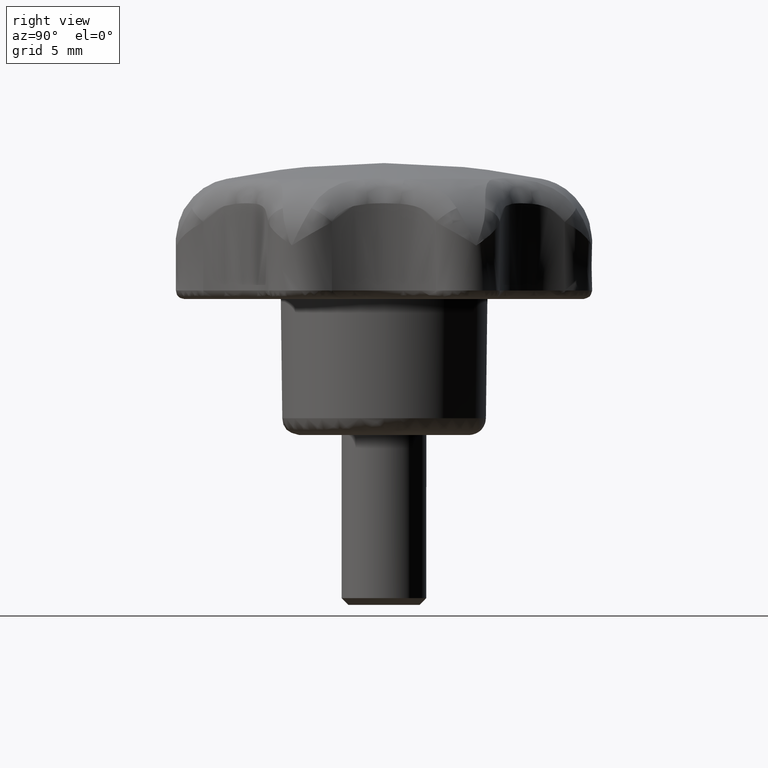
[diagram: clean part render]
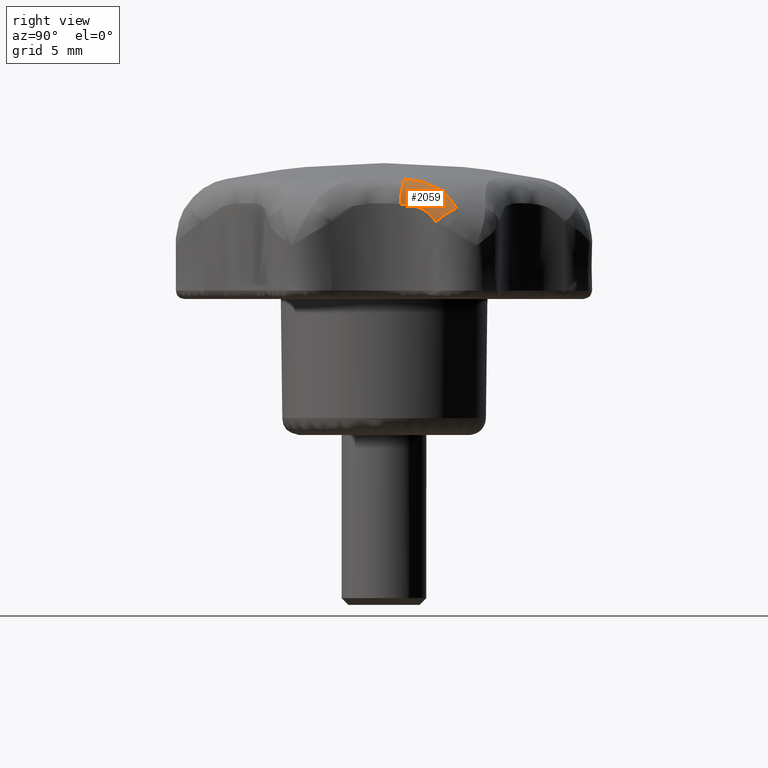
[diagram: same view with one face highlighted and labeled with its STEP entity id]
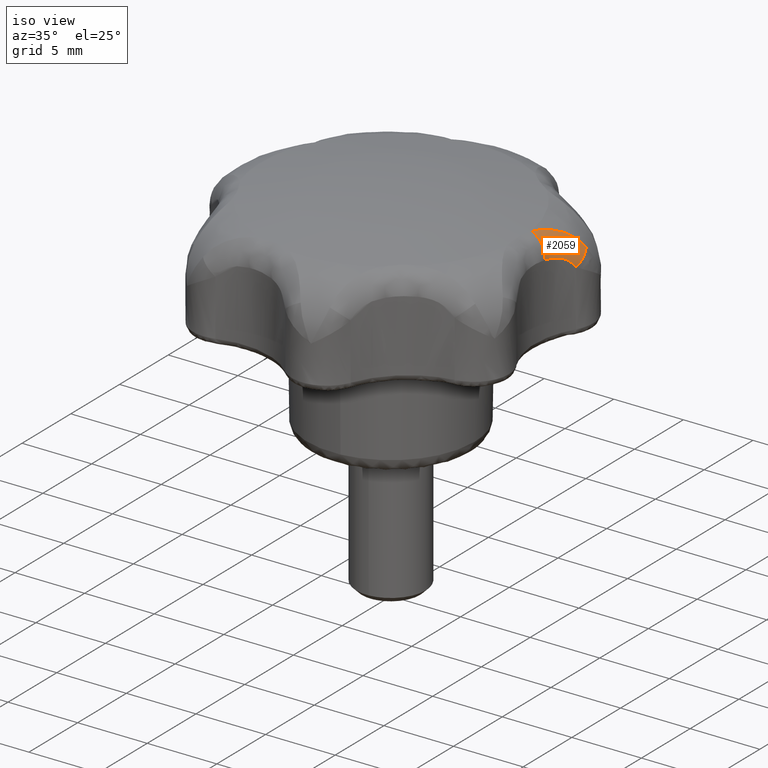
[diagram: same view with one face highlighted and labeled with its STEP entity id]
A machine part, right view. The second image highlights one B-rep face of the part: STEP entity #2059.
A second angle (iso view) of the same face is appended — the face is thin or edge-on in the first view.
In plain terms, the highlighted face is a freeform B-spline surface patch.
Its self-contained STEP definition (entity closure, byte-faithful):
#1850=CARTESIAN_POINT('',(11.036537417656840,4.281040366475301,5.355913830114730));
#1851=VERTEX_POINT('',#1850);
#1852=CARTESIAN_POINT('',(11.159455420660320,3.062709347942740,4.529263254309580));
#1853=VERTEX_POINT('',#1852);
#1854=CARTESIAN_POINT('',(11.036537417656840,4.281040366475303,5.355913830114733));
#1855=CARTESIAN_POINT('',(11.491315654833752,3.621761686236782,5.074930366952412));
#1856=CARTESIAN_POINT('',(11.159455420660320,3.062709347942740,4.529263254309580));
#1864=(BOUNDED_CURVE()B_SPLINE_CURVE(2,(#1854,#1855,#1856),.UNSPECIFIED.,.F.,.U.)CURVE()GEOMETRIC_REPRESENTATION_ITEM()QUASI_UNIFORM_CURVE()RATIONAL_B_SPLINE_CURVE((1.0,0.870326255887946,1.0))REPRESENTATION_ITEM(''));
#1865=EDGE_CURVE('',#1851,#1853,#1864,.T.);
#1916=CARTESIAN_POINT('',(10.393393594076686,0.942653199367460,5.593499764229566));
#1917=CARTESIAN_POINT('',(10.394043101428361,0.946682992128622,5.593205452389092));
#1918=CARTESIAN_POINT('',(10.394692610867812,0.950712797843149,5.592911139602578));
#1919=CARTESIAN_POINT('',(10.427820364033034,1.156250086302444,5.577899931523625));
#1920=CARTESIAN_POINT('',(10.471424526880931,1.359752806629839,5.555075291315831));
#1921=CARTESIAN_POINT('',(10.577572324236190,1.754722411542484,5.478473409872047));
#1922=CARTESIAN_POINT('',(10.639952152322611,1.946434351138911,5.424954084903206));
#1923=CARTESIAN_POINT('',(10.780173727358159,2.315505490057856,5.266416030610920));
#1924=CARTESIAN_POINT('',(10.856613045774624,2.488716580921554,5.162510052786407));
#1925=CARTESIAN_POINT('',(11.009807915757774,2.800684636226268,4.893346278663356));
#1926=CARTESIAN_POINT('',(11.088009866472520,2.942103578906298,4.724808049372673));
#1927=CARTESIAN_POINT('',(11.157925601671799,3.060138020498930,4.520487619099723));
#1928=CARTESIAN_POINT('',(11.159296525334083,3.062452466717383,4.516481257559677));
#1929=CARTESIAN_POINT('',(11.160667450799545,3.064766915980065,4.512474890749991));
#1930=CARTESIAN_POINT('',(10.393436337586445,0.942921843446778,5.598281536272565));
#1931=CARTESIAN_POINT('',(10.394086366633445,0.946953669310570,5.597985622559495));
#1932=CARTESIAN_POINT('',(10.394736396726374,0.950985501661765,5.597689708370288));
#1933=CARTESIAN_POINT('',(10.427889321553982,1.156617573637759,5.582597451908861));
#1934=CARTESIAN_POINT('',(10.471534066905702,1.360247251317633,5.559667704385291));
#1935=CARTESIAN_POINT('',(10.577813819301950,1.755530653863825,5.482806196962842));
#1936=CARTESIAN_POINT('',(10.640286242869054,1.947430317546767,5.429131616398528));
#1937=CARTESIAN_POINT('',(10.780756107310195,2.316915780762714,5.270212627190163));
#1938=CARTESIAN_POINT('',(10.857349638150559,2.490348136924450,5.166084487075175));
#1939=CARTESIAN_POINT('',(11.010887691068181,2.802743389636072,4.896393956287716));
#1940=CARTESIAN_POINT('',(11.089281465510885,2.944370354614905,4.727546319741928));
#1941=CARTESIAN_POINT('',(11.159378418099100,3.062582941253143,4.522863591875987));
#1942=CARTESIAN_POINT('',(11.160752871626647,3.064900840972113,4.518850194902871));
#1943=CARTESIAN_POINT('',(11.162127326058689,3.067218742216456,4.514836795288590));
#1944=CARTESIAN_POINT('',(10.404549387062085,1.012767650732043,6.841512838617004));
#1945=CARTESIAN_POINT('',(10.405332697658370,1.017313330929606,6.840540141750842));
#1946=CARTESIAN_POINT('',(10.406115682712649,1.021857121953375,6.839567849135165));
#1947=CARTESIAN_POINT('',(10.445620959726796,1.251112740700500,6.790511115662142));
#1948=CARTESIAN_POINT('',(10.499338843724999,1.485753195120920,6.725369654160792));
#1949=CARTESIAN_POINT('',(10.637528748962321,1.955386221155021,6.554182440345667));
#1950=CARTESIAN_POINT('',(10.721815455479810,2.190479269043753,6.448588338808772));
#1951=CARTESIAN_POINT('',(10.919557876758315,2.653038005755457,6.175076060819708));
#1952=CARTESIAN_POINT('',(11.031124682853735,2.875260778707223,6.009356150767167));
#1953=CARTESIAN_POINT('',(11.261628410005491,3.280818138255653,5.604112378125365));
#1954=CARTESIAN_POINT('',(11.382842353651474,3.467677364257275,5.359702414006635));
#1955=CARTESIAN_POINT('',(11.493476843783228,3.624831660057185,5.069256617934231));
#1956=CARTESIAN_POINT('',(11.495637629031789,3.627901016491224,5.063583965663565));
#1957=CARTESIAN_POINT('',(11.497798089169212,3.630969911110756,5.057912166898567));
#1958=CARTESIAN_POINT('',(9.198782077458152,1.218327338475521,7.074913674893992));
#1959=CARTESIAN_POINT('',(9.200452850298005,1.223647248665699,7.074440008404480));
#1960=CARTESIAN_POINT('',(9.202123625835752,1.228967167446242,7.073966341150112));
#1961=CARTESIAN_POINT('',(9.287336763859557,1.500294442164149,7.049808294654921));
#1962=CARTESIAN_POINT('',(9.398680054928432,1.774681622851071,7.013064119374965));
#1963=CARTESIAN_POINT('',(9.664433442349443,2.321510243180068,6.889893232679773));
#1964=CARTESIAN_POINT('',(9.818444605810591,2.594293005276490,6.803862849635916));
#1965=CARTESIAN_POINT('',(10.157834854586056,3.133931999479649,6.549094452385746));
#1966=CARTESIAN_POINT('',(10.339705638412196,3.394774338930372,6.382143672847675));
#1967=CARTESIAN_POINT('',(10.698319049683207,3.874957981606920,5.949701487431343));
#1968=CARTESIAN_POINT('',(10.878403563706637,4.098416765139992,5.678937222743531));
#1969=CARTESIAN_POINT('',(11.037664610200775,4.287644055535765,5.350710742846483));
#1970=CARTESIAN_POINT('',(11.040787383907281,4.291354404174119,5.344274912844315));
#1971=CARTESIAN_POINT('',(11.043910159676139,4.295064755262870,5.337839078591782));
#1972=CARTESIAN_POINT('',(9.194128048365672,1.219120759195573,7.075814557073821));
#1973=CARTESIAN_POINT('',(9.195801272344349,1.224443824610543,7.075343005882175));
#1974=CARTESIAN_POINT('',(9.197474501720492,1.229766907196610,7.074871453169396));
#1975=CARTESIAN_POINT('',(9.282816365615297,1.501266915525882,7.050820245363428));
#1976=CARTESIAN_POINT('',(9.394328594183152,1.775823903023870,7.014201521069976));
#1977=CARTESIAN_POINT('',(9.660484234620382,2.322996120059491,6.891255680578554));
#1978=CARTESIAN_POINT('',(9.814729711693772,2.595953591594470,6.805323830129819));
#1979=CARTESIAN_POINT('',(10.154627564624843,3.135956838474386,6.550669283915930));
#1980=CARTESIAN_POINT('',(10.336764530161961,3.396984208083336,6.383729409407279));
#1981=CARTESIAN_POINT('',(10.695884685426488,3.877525581046993,5.951194964789377));
#1982=CARTESIAN_POINT('',(10.876210806133876,4.101158541992406,5.680324912505509));
#1983=CARTESIAN_POINT('',(11.035675529114270,4.290536447408146,5.351938957087643));
#1984=CARTESIAN_POINT('',(11.038802350107126,4.294249812967438,5.345499889687844));
#1985=CARTESIAN_POINT('',(11.041929175227342,4.297963183428311,5.339060813788585));
#1993=(BOUNDED_SURFACE()B_SPLINE_SURFACE(3,2,((#1916,#1930,#1944,#1958,#1972),(#1917,#1931,#1945,#1959,#1973),(#1918,#1932,#1946,#1960,#1974),(#1919,#1933,#1947,#1961,#1975),(#1920,#1934,#1948,#1962,#1976),(#1921,#1935,#1949,#1963,#1977),(#1922,#1936,#1950,#1964,#1978),(#1923,#1937,#1951,#1965,#1979),(#1924,#1938,#1952,#1966,#1980),(#1925,#1939,#1953,#1967,#1981),(#1926,#1940,#1954,#1968,#1982),(#1927,#1941,#1955,#1969,#1983),(#1928,#1942,#1956,#1970,#1984),(#1929,#1943,#1957,#1971,#1985)),.UNSPECIFIED.,.F.,.F.,.U.)B_SPLINE_SURFACE_WITH_KNOTS((4,2,2,2,2,2,4),(3,1,1,3),(0.0,0.024192328408471,1.233808865235196,2.443425402061921,3.653041938888646,4.862658475715372,4.886850446657348),(0.0,0.010857122420501,2.170338953367474,2.181234641346602),.UNSPECIFIED.)GEOMETRIC_REPRESENTATION_ITEM()RATIONAL_B_SPLINE_SURFACE(((1.002306307942823,1.001153153971411,0.770637655807842,1.001157250086880,1.002314500173760),(1.002304697041382,1.001152348520691,0.770797859969568,1.001156441775120,1.002312883550240),(1.002303086139942,1.001151543069971,0.770958064131294,1.001155633463360,1.002311266926721),(1.002220930158724,1.001110465079362,0.779128477150146,1.001114409559719,1.002228819119438),(1.002119680481268,1.001059840240634,0.789197758419473,1.001063604896622,1.002127209793245),(1.001910840998225,1.000955420499113,0.809966846753770,1.000958814245986,1.001917628491973),(1.001803639049903,1.000901819524952,0.820628081410544,1.000905022875933,1.001810045751866),(1.001608017056406,1.000804008528203,0.840082690298969,1.000806864444977,1.001613728889953),(1.001522172864501,1.000761086432251,0.848619895901558,1.000763789885549,1.001527579771098),(1.001387309054282,1.000693654527141,0.862032102955163,1.000696118455731,1.001392236911461),(1.001336834950519,1.000668417475260,0.867051752996251,1.000670791759378,1.001341583518755),(1.001303250205655,1.000651625102827,0.870391756153794,1.000653939738799,1.001307879477598),(1.001302591690847,1.000651295845423,0.870457245456895,1.000653609311841,1.001307218623682),(1.001301933176040,1.000650966588020,0.870522734759995,1.000653278884883,1.001306557769766)))REPRESENTATION_ITEM('')SURFACE());
#1994=CARTESIAN_POINT('',(9.208451803825779,1.233482328234226,7.072583351951930));
#1995=VERTEX_POINT('',#1994);
#1996=CARTESIAN_POINT('',(10.395430835303340,0.955292696760125,5.602181755613060));
#1997=VERTEX_POINT('',#1996);
#1998=CARTESIAN_POINT('',(9.208451803825781,1.233482328234228,7.072583351951940));
#1999=CARTESIAN_POINT('',(10.406898342427816,1.026399024980812,6.838595960518064));
#2000=CARTESIAN_POINT('',(10.395430835303360,0.955292696760124,5.602181755613050));
#2008=(BOUNDED_CURVE()B_SPLINE_CURVE(2,(#1998,#1999,#2000),.UNSPECIFIED.,.F.,.U.)CURVE()GEOMETRIC_REPRESENTATION_ITEM()QUASI_UNIFORM_CURVE()RATIONAL_B_SPLINE_CURVE((1.0,0.771118268293011,1.0))REPRESENTATION_ITEM(''));
#2009=EDGE_CURVE('',#1995,#1997,#2008,.T.);
#2010=ORIENTED_EDGE('',*,*,#2009,.T.);
#2011=CARTESIAN_POINT('',(11.159455420660320,3.062709347942740,4.529263254309580));
#2012=CARTESIAN_POINT('',(11.097307150634050,2.958015222196819,4.710587338316671));
#2013=CARTESIAN_POINT('',(11.026306853259930,2.831434121368761,4.869634573571820));
#2014=CARTESIAN_POINT('',(10.932038670755240,2.642644656377833,5.040415269300119));
#2015=CARTESIAN_POINT('',(10.912845033424270,2.603196059762111,5.073255024005937));
#2016=CARTESIAN_POINT('',(10.874687245952961,2.522421054020150,5.135105762136003));
#2017=CARTESIAN_POINT('',(10.817620060883760,2.398114901522090,5.222491853101420));
#2018=CARTESIAN_POINT('',(10.761782035594090,2.264606019892710,5.294640308337601));
#2019=CARTESIAN_POINT('',(10.689632164524800,2.078784500120186,5.378835751545020));
#2020=CARTESIAN_POINT('',(10.654564357572561,1.981450678451856,5.415024741681449));
#2021=CARTESIAN_POINT('',(10.589408629434301,1.784313447153600,5.475694345675098));
#2022=CARTESIAN_POINT('',(10.559107969940619,1.684041225267764,5.500463142327617));
#2023=CARTESIAN_POINT('',(10.503465281648500,1.480513013195496,5.541537364751225));
#2024=CARTESIAN_POINT('',(10.478122284818561,1.377256622170982,5.557839488949768));
#2025=CARTESIAN_POINT('',(10.432727745977299,1.168116801600691,5.584218342565946));
#2026=CARTESIAN_POINT('',(10.412630211124361,1.061940501644455,5.594315694474295));
#2027=CARTESIAN_POINT('',(10.395430835303360,0.955292696760125,5.602181755613051));
#2028=B_SPLINE_CURVE_WITH_KNOTS('',3,(#2011,#2012,#2013,#2014,#2015,#2016,#2017,#2018,#2019,#2020,#2021,#2022,#2023,#2024,#2025,#2026,#2027),.UNSPECIFIED.,.F.,.U.,(4,2,2,1,2,2,2,2,4),(0.0,0.249999999999999,0.312499999999999,0.374999999999999,0.499999999999999,0.624999999999999,0.749999999999999,0.875000000000000,1.0),.UNSPECIFIED.);
#2029=EDGE_CURVE('',#1853,#1997,#2028,.T.);
#2030=ORIENTED_EDGE('',*,*,#2029,.F.);
#2031=ORIENTED_EDGE('',*,*,#1865,.F.);
#2032=CARTESIAN_POINT('',(9.208451803825779,1.233482328234226,7.072583351951930));
#2033=CARTESIAN_POINT('',(9.259296900521738,1.395521071947296,7.058082829067390));
#2034=CARTESIAN_POINT('',(9.318266728476058,1.554509502013084,7.039222406683005));
#2035=CARTESIAN_POINT('',(9.416405868615136,1.788979355698851,7.001964745033769));
#2036=CARTESIAN_POINT('',(9.450786310067985,1.866552496097042,6.988022346625193));
#2037=CARTESIAN_POINT('',(9.521764862649958,2.019064714433905,6.957015491715143));
#2038=CARTESIAN_POINT('',(9.558428379700915,2.094171012294922,6.939928819736292));
#2039=CARTESIAN_POINT('',(9.671338097459564,2.316224696816415,6.883468603075372));
#2040=CARTESIAN_POINT('',(9.750482792485865,2.459919352222939,6.838898598714269));
#2041=CARTESIAN_POINT('',(9.873052583493061,2.669435006068423,6.759844297257385));
#2042=CARTESIAN_POINT('',(9.914556990640058,2.738265920930176,6.731459189060199));
#2043=CARTESIAN_POINT('',(9.998590571853828,2.873956809060732,6.670300304407171));
#2044=CARTESIAN_POINT('',(10.041256457874271,2.941023932850542,6.637412411478657));
#2045=CARTESIAN_POINT('',(10.254708843362190,3.268707974136767,6.462647306932611));
#2046=CARTESIAN_POINT('',(10.424663226380950,3.505335729916683,6.291042429073061));
#2047=CARTESIAN_POINT('',(10.626966014833171,3.771879246740230,6.031994755371493));
#2048=CARTESIAN_POINT('',(10.666927723084610,3.823707412044272,5.977942818384302));
#2049=CARTESIAN_POINT('',(10.745637568252040,3.924392661926578,5.865151914573092));
#2050=CARTESIAN_POINT('',(10.784460350034051,3.973342235311300,5.806292696844579));
#2051=CARTESIAN_POINT('',(10.898263401118150,4.115042353899917,5.623113811033982));
#2052=CARTESIAN_POINT('',(10.969871155027160,4.201791881620674,5.493417840871372));
#2053=CARTESIAN_POINT('',(11.036537417656840,4.281040366475285,5.355913830114719));
#2054=B_SPLINE_CURVE_WITH_KNOTS('',3,(#2032,#2033,#2034,#2035,#2036,#2037,#2038,#2039,#2040,#2041,#2042,#2043,#2044,#2045,#2046,#2047,#2048,#2049,#2050,#2051,#2052,#2053),.UNSPECIFIED.,.F.,.U.,(4,2,2,2,2,2,2,2,2,2,4),(0.0,0.125000000000001,0.187500000000001,0.250000000000001,0.375000000000002,0.437500000000002,0.500000000000001,0.750000000000000,0.812500000000000,0.875000000000000,1.0),.UNSPECIFIED.);
#2055=EDGE_CURVE('',#1995,#1851,#2054,.T.);
#2056=ORIENTED_EDGE('',*,*,#2055,.F.);
#2057=EDGE_LOOP('',(#2010,#2030,#2031,#2056));
#2058=FACE_OUTER_BOUND('',#2057,.T.);
#2059=ADVANCED_FACE('',(#2058),#1993,.T.);